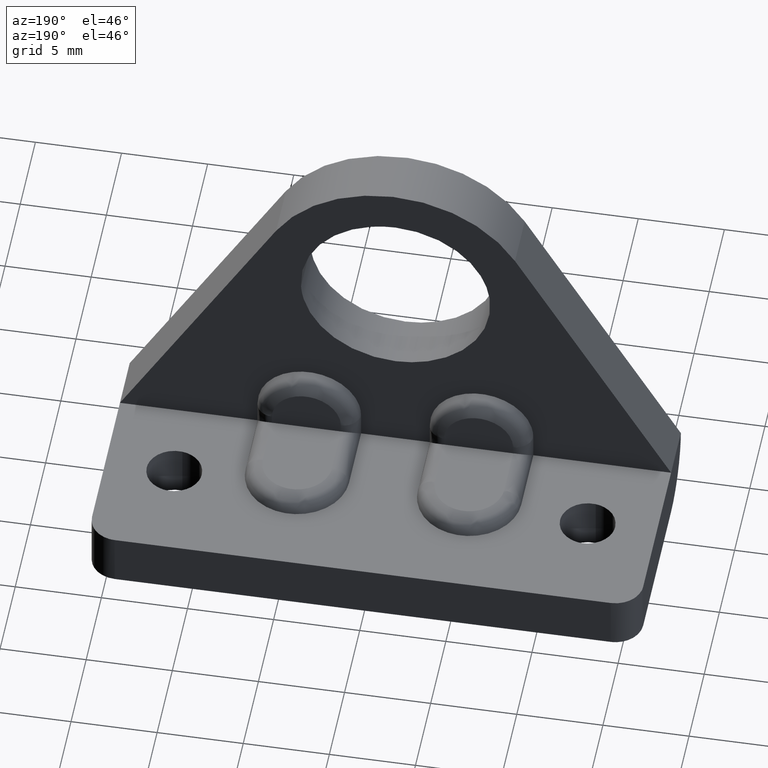
[diagram: clean part render]
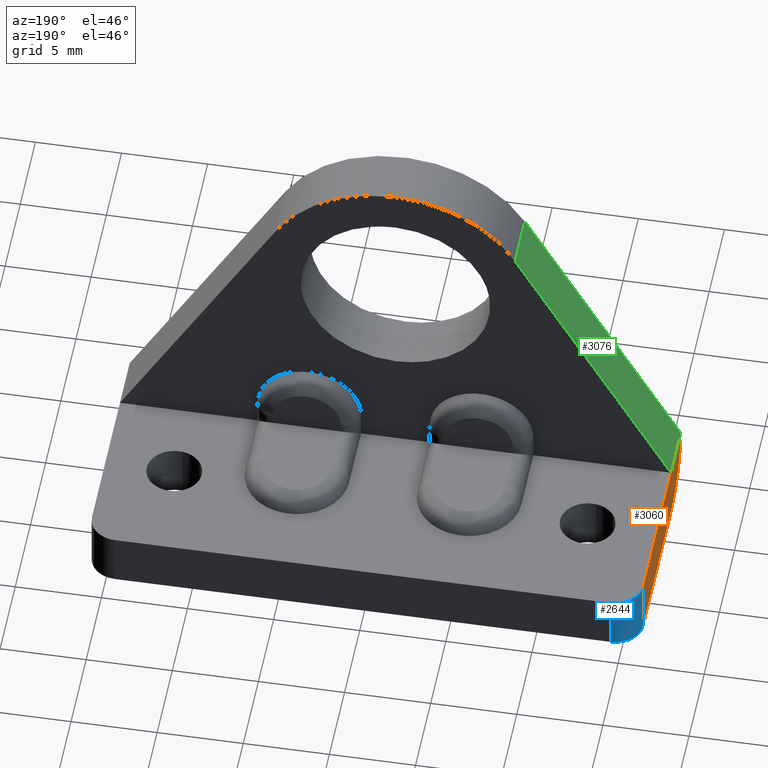
[diagram: same view with three faces highlighted in distinct colors, each labeled with its STEP entity id]
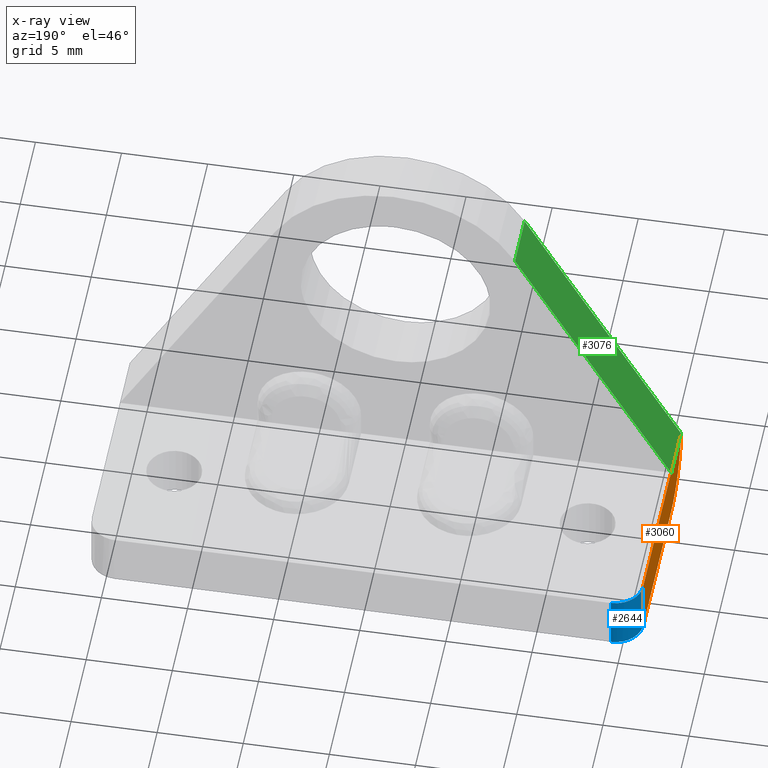
[diagram: x-ray of the same camera — body ghosted, the three highlighted faces saturated]
A machine part, auxiliary view with three faces highlighted in distinct colors.
The next image is the same camera in x-ray (body ghosted, the three faces saturated) — at least one of them is partly hidden behind the body in this view.
Their STEP definitions:

[orange] entity #3060 — the highlighted face is a freeform B-spline surface patch.
#2600=CARTESIAN_POINT('',(-16.0,12.399999999999860,3.200004999999890));
#2601=VERTEX_POINT('',#2600);
#2622=CARTESIAN_POINT('',(-16.0,12.399999999999860,0.0));
#2623=VERTEX_POINT('',#2622);
#2637=CARTESIAN_POINT('',(-16.0,12.399999999999860,3.200004999999890));
#2638=CARTESIAN_POINT('',(-16.0,12.399999999999860,0.0));
#2639=QUASI_UNIFORM_CURVE('',1,(#2637,#2638),.UNSPECIFIED.,.F.,.U.);
#2640=EDGE_CURVE('',#2601,#2623,#2639,.T.);
#2756=CARTESIAN_POINT('',(-16.0,3.199997000000000,3.199997000000000));
#2757=VERTEX_POINT('',#2756);
#2793=CARTESIAN_POINT('',(-16.0,12.399999999999860,3.200004999999890));
#2794=CARTESIAN_POINT('',(-16.0,3.199997000000000,3.199997000000000));
#2795=QUASI_UNIFORM_CURVE('',1,(#2793,#2794),.UNSPECIFIED.,.F.,.U.);
#2796=EDGE_CURVE('',#2601,#2757,#2795,.T.);
#2906=CARTESIAN_POINT('',(-16.0,0.0,3.200004999999890));
#2907=VERTEX_POINT('',#2906);
#2986=CARTESIAN_POINT('',(-16.0,3.200000000000000,0.0));
#2987=VERTEX_POINT('',#2986);
#2993=CARTESIAN_POINT('',(-16.0,12.399999999999860,0.0));
#2994=CARTESIAN_POINT('',(-16.0,3.200000000000000,0.0));
#2995=QUASI_UNIFORM_CURVE('',1,(#2993,#2994),.UNSPECIFIED.,.F.,.U.);
#2996=EDGE_CURVE('',#2623,#2987,#2995,.T.);
#3030=CARTESIAN_POINT('',(-16.0,-0.619379931664877,-0.159840243547764));
#3031=CARTESIAN_POINT('',(-16.0,-0.619379931664877,3.359845329378477));
#3032=CARTESIAN_POINT('',(-16.0,13.019379377341540,-0.159840243547764));
#3033=CARTESIAN_POINT('',(-16.0,13.019379377341540,3.359845329378477));
#3034=B_SPLINE_SURFACE_WITH_KNOTS('',1,1,((#3030,#3032),(#3031,#3033)),.UNSPECIFIED.,.F.,.F.,.U.,(2,2),(2,2),(0.0,3.519685572926241),(0.0,13.638759309006421),.UNSPECIFIED.);
#3035=ORIENTED_EDGE('',*,*,#2796,.F.);
#3036=ORIENTED_EDGE('',*,*,#2640,.T.);
#3037=ORIENTED_EDGE('',*,*,#2996,.T.);
#3038=CARTESIAN_POINT('',(-16.0,3.200000000000000,0.0));
#3039=CARTESIAN_POINT('',(-16.0,1.874515135939797,0.0));
#3040=CARTESIAN_POINT('',(-16.0,0.937256532436825,0.937260067970653));
#3041=CARTESIAN_POINT('',(-16.0,-0.000002071066149,1.874520135941306));
#3042=CARTESIAN_POINT('',(-16.0,0.0,3.200004999999890));
#3050=(BOUNDED_CURVE()B_SPLINE_CURVE(2,(#3038,#3039,#3040,#3041,#3042),.UNSPECIFIED.,.F.,.U.)B_SPLINE_CURVE_WITH_KNOTS((3,2,3),(0.0,0.500000000000000,1.0),.UNSPECIFIED.)CURVE()GEOMETRIC_REPRESENTATION_ITEM()RATIONAL_B_SPLINE_CURVE((1.0,0.923879383025504,1.0,0.923879383025504,1.0))REPRESENTATION_ITEM(''));
#3051=EDGE_CURVE('',#2987,#2907,#3050,.T.);
#3052=ORIENTED_EDGE('',*,*,#3051,.T.);
#3053=CARTESIAN_POINT('',(-16.0,3.199997000000000,3.199997000000000));
#3054=CARTESIAN_POINT('',(-16.0,0.0,3.200004999999890));
#3055=QUASI_UNIFORM_CURVE('',1,(#3053,#3054),.UNSPECIFIED.,.F.,.U.);
#3056=EDGE_CURVE('',#2757,#2907,#3055,.T.);
#3057=ORIENTED_EDGE('',*,*,#3056,.F.);
#3058=EDGE_LOOP('',(#3035,#3036,#3037,#3052,#3057));
#3059=FACE_OUTER_BOUND('',#3058,.T.);
#3060=ADVANCED_FACE('',(#3059),#3034,.T.);

[blue] entity #2644 — the highlighted face is a freeform B-spline surface patch.
#2584=CARTESIAN_POINT('',(-14.358116882707399,13.999451719960749,3.280005124999887));
#2585=CARTESIAN_POINT('',(-14.358116882707399,13.999451719960749,-0.082000128124997));
#2586=CARTESIAN_POINT('',(-16.119976197740545,14.045587629800149,3.280005124999887));
#2587=CARTESIAN_POINT('',(-16.119976197740545,14.045587629800149,-0.082000128124997));
#2588=CARTESIAN_POINT('',(-15.996039134156797,12.287487412970629,3.280005124999887));
#2589=CARTESIAN_POINT('',(-15.996039134156797,12.287487412970629,-0.082000128124997));
#2597=(BOUNDED_SURFACE()B_SPLINE_SURFACE(1,2,((#2584,#2586,#2588),(#2585,#2587,#2589)),.UNSPECIFIED.,.F.,.F.,.U.)B_SPLINE_SURFACE_WITH_KNOTS((2,2),(3,3),(0.0,3.362005253124884),(0.0,2.833828309517602),.UNSPECIFIED.)GEOMETRIC_REPRESENTATION_ITEM()RATIONAL_B_SPLINE_SURFACE(((1.0,0.670944158388059,0.996392776722510),(1.0,0.670944158388059,0.996392776722510)))REPRESENTATION_ITEM('')SURFACE());
#2598=CARTESIAN_POINT('',(-14.400000000000000,14.0,3.199997000000000));
#2599=VERTEX_POINT('',#2598);
#2600=CARTESIAN_POINT('',(-16.0,12.399999999999860,3.200004999999890));
#2601=VERTEX_POINT('',#2600);
#2602=CARTESIAN_POINT('',(-14.400000000000000,14.0,3.199997000000000));
#2603=CARTESIAN_POINT('',(-15.999999999999998,13.999999999999929,3.200000999999946));
#2604=CARTESIAN_POINT('',(-16.0,12.399999999999860,3.200004999999890));
#2612=(BOUNDED_CURVE()B_SPLINE_CURVE(2,(#2602,#2603,#2604),.UNSPECIFIED.,.F.,.U.)CURVE()GEOMETRIC_REPRESENTATION_ITEM()QUASI_UNIFORM_CURVE()RATIONAL_B_SPLINE_CURVE((1.0,0.707106781186548,1.0))REPRESENTATION_ITEM(''));
#2613=EDGE_CURVE('',#2599,#2601,#2612,.T.);
#2614=ORIENTED_EDGE('',*,*,#2613,.F.);
#2615=CARTESIAN_POINT('',(-14.400000000000000,14.0,0.0));
#2616=VERTEX_POINT('',#2615);
#2617=CARTESIAN_POINT('',(-14.400000000000000,14.0,0.0));
#2618=CARTESIAN_POINT('',(-14.400000000000000,14.0,3.199997000000000));
#2619=QUASI_UNIFORM_CURVE('',1,(#2617,#2618),.UNSPECIFIED.,.F.,.U.);
#2620=EDGE_CURVE('',#2616,#2599,#2619,.T.);
#2621=ORIENTED_EDGE('',*,*,#2620,.F.);
#2622=CARTESIAN_POINT('',(-16.0,12.399999999999860,0.0));
#2623=VERTEX_POINT('',#2622);
#2624=CARTESIAN_POINT('',(-16.0,12.399999999999860,0.0));
#2625=CARTESIAN_POINT('',(-15.999999999999998,13.999999999999858,0.0));
#2626=CARTESIAN_POINT('',(-14.400000000000000,14.0,0.0));
#2634=(BOUNDED_CURVE()B_SPLINE_CURVE(2,(#2624,#2625,#2626),.UNSPECIFIED.,.F.,.U.)CURVE()GEOMETRIC_REPRESENTATION_ITEM()QUASI_UNIFORM_CURVE()RATIONAL_B_SPLINE_CURVE((1.0,0.707106781186548,1.0))REPRESENTATION_ITEM(''));
#2635=EDGE_CURVE('',#2623,#2616,#2634,.T.);
#2636=ORIENTED_EDGE('',*,*,#2635,.F.);
#2637=CARTESIAN_POINT('',(-16.0,12.399999999999860,3.200004999999890));
#2638=CARTESIAN_POINT('',(-16.0,12.399999999999860,0.0));
#2639=QUASI_UNIFORM_CURVE('',1,(#2637,#2638),.UNSPECIFIED.,.F.,.U.);
#2640=EDGE_CURVE('',#2601,#2623,#2639,.T.);
#2641=ORIENTED_EDGE('',*,*,#2640,.F.);
#2642=EDGE_LOOP('',(#2614,#2621,#2636,#2641));
#2643=FACE_OUTER_BOUND('',#2642,.T.);
#2644=ADVANCED_FACE('',(#2643),#2597,.T.);

[green] entity #3076 — the highlighted face is a freeform B-spline surface patch.
#2756=CARTESIAN_POINT('',(-16.0,3.199997000000000,3.199997000000000));
#2757=VERTEX_POINT('',#2756);
#2822=CARTESIAN_POINT('',(-6.937761007558000,3.199996999999955,18.983407578501652));
#2823=VERTEX_POINT('',#2822);
#2824=CARTESIAN_POINT('',(-16.0,3.199997000000000,3.199997000000000));
#2825=CARTESIAN_POINT('',(-6.937761007558000,3.199996999999955,18.983407578501652));
#2826=QUASI_UNIFORM_CURVE('',1,(#2824,#2825),.UNSPECIFIED.,.F.,.U.);
#2827=EDGE_CURVE('',#2757,#2823,#2826,.T.);
#2889=CARTESIAN_POINT('',(-6.937760000000000,0.0,18.983407000000000));
#2890=VERTEX_POINT('',#2889);
#2906=CARTESIAN_POINT('',(-16.0,0.0,3.200004999999890));
#2907=VERTEX_POINT('',#2906);
#2908=CARTESIAN_POINT('',(-6.937760000000000,0.0,18.983407000000000));
#2909=CARTESIAN_POINT('',(-16.0,0.0,3.200004999999890));
#2910=QUASI_UNIFORM_CURVE('',1,(#2908,#2909),.UNSPECIFIED.,.F.,.U.);
#2911=EDGE_CURVE('',#2890,#2907,#2910,.T.);
#3053=CARTESIAN_POINT('',(-16.0,3.199997000000000,3.199997000000000));
#3054=CARTESIAN_POINT('',(-16.0,0.0,3.200004999999890));
#3055=QUASI_UNIFORM_CURVE('',1,(#3053,#3054),.UNSPECIFIED.,.F.,.U.);
#3056=EDGE_CURVE('',#2757,#2907,#3055,.T.);
#3061=CARTESIAN_POINT('',(-16.452662582542899,-0.159839832515148,2.411617635437405));
#3062=CARTESIAN_POINT('',(-6.485100709897418,-0.159839832515148,19.771788630228698));
#3063=CARTESIAN_POINT('',(-16.452662582542899,3.359836689464135,2.411617635437405));
#3064=CARTESIAN_POINT('',(-6.485100709897418,3.359836689464135,19.771788630228698));
#3065=B_SPLINE_SURFACE_WITH_KNOTS('',1,1,((#3061,#3063),(#3062,#3064)),.UNSPECIFIED.,.F.,.F.,.U.,(2,2),(2,2),(0.0,20.018187396800158),(0.0,3.519676521979283),.UNSPECIFIED.);
#3066=ORIENTED_EDGE('',*,*,#2827,.F.);
#3067=ORIENTED_EDGE('',*,*,#3056,.T.);
#3068=ORIENTED_EDGE('',*,*,#2911,.F.);
#3069=CARTESIAN_POINT('',(-6.937761007558000,3.199996999999955,18.983407578501652));
#3070=CARTESIAN_POINT('',(-6.937760000000000,0.0,18.983407000000000));
#3071=QUASI_UNIFORM_CURVE('',1,(#3069,#3070),.UNSPECIFIED.,.F.,.U.);
#3072=EDGE_CURVE('',#2823,#2890,#3071,.T.);
#3073=ORIENTED_EDGE('',*,*,#3072,.F.);
#3074=EDGE_LOOP('',(#3066,#3067,#3068,#3073));
#3075=FACE_OUTER_BOUND('',#3074,.T.);
#3076=ADVANCED_FACE('',(#3075),#3065,.T.);